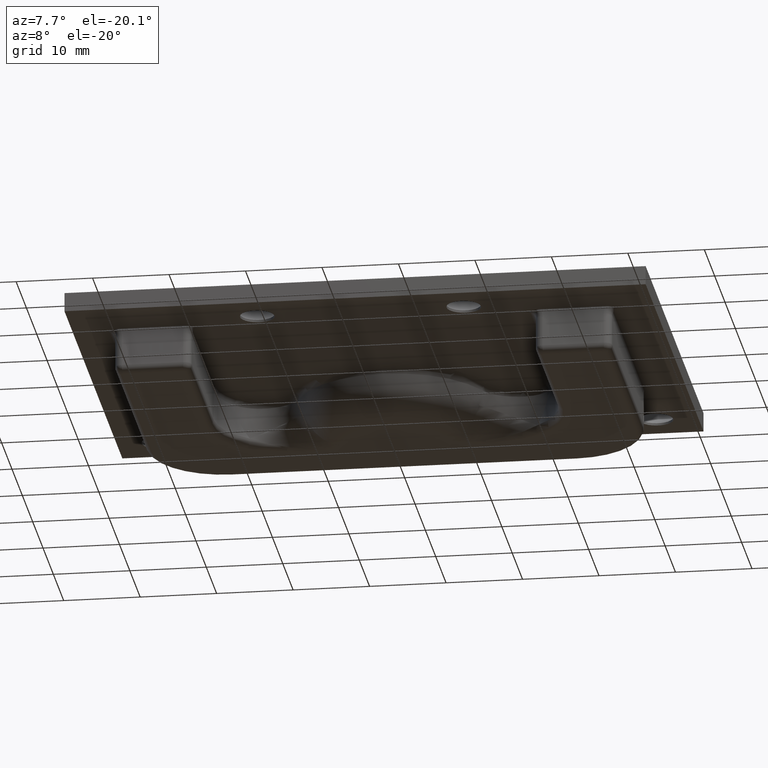
[diagram: clean part render]
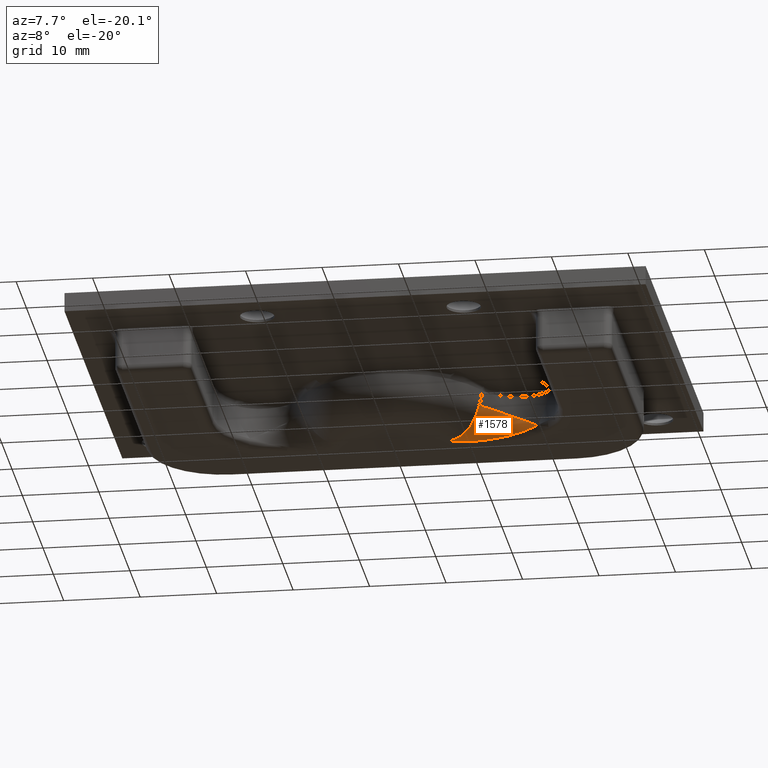
[diagram: same view with one face highlighted and labeled with its STEP entity id]
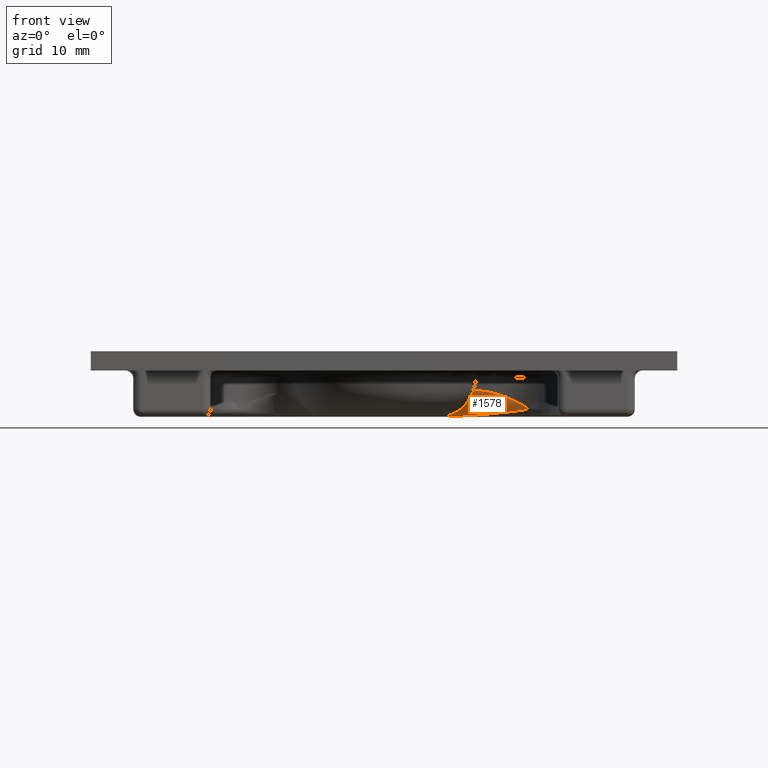
[diagram: same view with one face highlighted and labeled with its STEP entity id]
A machine part, auxiliary view. The second image highlights one B-rep face of the part: STEP entity #1578.
A second angle (front view) of the same face is appended — the face is thin or edge-on in the first view.
In plain terms, the highlighted face is a freeform B-spline surface patch.
Its self-contained STEP definition (entity closure, byte-faithful):
#316=B_SPLINE_CURVE_WITH_KNOTS('',3,(#2622,#2623,#2624,#2625,#2626,#2627,
#2628,#2629,#2630,#2631,#2632,#2633),.UNSPECIFIED.,.F.,.F.,(4,1,1,1,1,1,
1,2,4),(0.,0.251169020170854,0.376753530256281,0.502338040341707,0.627922550427134,
0.753507060512561,1.00467608068341,1.25584510085427,1.25755163621248),
 .UNSPECIFIED.);
#320=B_SPLINE_CURVE_WITH_KNOTS('',3,(#2769,#2770,#2771,#2772,#2773,#2774,
#2775,#2776,#2777,#2778,#2779,#2780),.UNSPECIFIED.,.F.,.F.,(4,2,1,1,1,1,
1,1,4),(-1.25755163621248,-1.25584510085427,-1.00467608068341,-0.753507060512561,
-0.627922550427134,-0.502338040341707,-0.376753530256281,-0.251169020170854,
0.),.UNSPECIFIED.);
#330=B_SPLINE_SURFACE_WITH_KNOTS('',3,3,((#2696,#2697,#2698,#2699,#2700,
#2701,#2702,#2703,#2704,#2705,#2706,#2707),(#2708,#2709,#2710,#2711,#2712,
#2713,#2714,#2715,#2716,#2717,#2718,#2719),(#2720,#2721,#2722,#2723,#2724,
#2725,#2726,#2727,#2728,#2729,#2730,#2731),(#2732,#2733,#2734,#2735,#2736,
#2737,#2738,#2739,#2740,#2741,#2742,#2743),(#2744,#2745,#2746,#2747,#2748,
#2749,#2750,#2751,#2752,#2753,#2754,#2755),(#2756,#2757,#2758,#2759,#2760,
#2761,#2762,#2763,#2764,#2765,#2766,#2767)),.UNSPECIFIED.,.F.,.F.,.F.,(4,
1,1,4),(4,1,1,1,1,1,1,2,4),(0.,0.285714285714286,0.571428571428571,1.),
(0.,0.251169020170854,0.376753530256281,0.502338040341707,0.627922550427134,
0.753507060512561,1.00467608068341,1.25584510085427,1.25755163621248),
 .UNSPECIFIED.);
#400=FACE_OUTER_BOUND('',#512,.T.);
#512=EDGE_LOOP('',(#1136,#1137,#1138));
#636=CIRCLE('',#1706,5.);
#732=VERTEX_POINT('',#2619);
#733=VERTEX_POINT('',#2621);
#738=VERTEX_POINT('',#2768);
#884=EDGE_CURVE('',#733,#732,#316,.T.);
#892=EDGE_CURVE('',#732,#738,#320,.T.);
#893=EDGE_CURVE('',#738,#733,#636,.T.);
#1136=ORIENTED_EDGE('',*,*,#884,.T.);
#1137=ORIENTED_EDGE('',*,*,#892,.T.);
#1138=ORIENTED_EDGE('',*,*,#893,.T.);
#1578=ADVANCED_FACE('',(#400),#330,.T.);
#1706=AXIS2_PLACEMENT_3D('',#2781,#1942,#1943);
#1942=DIRECTION('center_axis',(0.366929144654861,-0.297023210503434,0.88155556559135));
#1943=DIRECTION('ref_axis',(0.629179457559862,0.777260065991221,-2.95319324550292E-14));
#2619=CARTESIAN_POINT('',(6.98328978842822,11.0166122355353,-6.));
#2621=CARTESIAN_POINT('',(11.4977239630233,7.00721637078581,-2.72727272727264));
#2622=CARTESIAN_POINT('Ctrl Pts',(11.4977239630233,7.00721637078581,-2.72727272727264));
#2623=CARTESIAN_POINT('Ctrl Pts',(11.3384179139999,7.16399641722447,-3.12985354115579));
#2624=CARTESIAN_POINT('Ctrl Pts',(11.0844118238203,7.53828450565104,-3.68735695889978));
#2625=CARTESIAN_POINT('Ctrl Pts',(10.6543981870732,8.11284087741195,-4.32209043936628));
#2626=CARTESIAN_POINT('Ctrl Pts',(10.2766563198052,8.56993571602306,-4.7505059204097));
#2627=CARTESIAN_POINT('Ctrl Pts',(9.84406299400316,9.02906404177418,-5.12171864078254));
#2628=CARTESIAN_POINT('Ctrl Pts',(9.20061402947328,9.62661185026056,-5.53542506265548));
#2629=CARTESIAN_POINT('Ctrl Pts',(8.27088820045195,10.3293765006812,-5.89737085164065));
#2630=CARTESIAN_POINT('Ctrl Pts',(7.42533970057211,10.8051184787589,-5.99927736195281));
#2631=CARTESIAN_POINT('Ctrl Pts',(6.98917473840528,11.013802213345,-5.99999788271879));
#2632=CARTESIAN_POINT('Ctrl Pts',(6.98623301014591,11.0152075858917,-6.));
#2633=CARTESIAN_POINT('Ctrl Pts',(6.98328978842821,11.0166122355353,-6.));
#2696=CARTESIAN_POINT('Ctrl Pts',(18.7917945755986,9.27260065991222,-4.99999999999997));
#2697=CARTESIAN_POINT('Ctrl Pts',(18.177386350698,9.76995418491324,-5.12301080424205));
#2698=CARTESIAN_POINT('Ctrl Pts',(16.9243466508803,10.6068073882782,-5.29335907077494));
#2699=CARTESIAN_POINT('Ctrl Pts',(15.0679478068575,11.3258517595754,-5.48730541202859));
#2700=CARTESIAN_POINT('Ctrl Pts',(13.6536659793175,11.6766243647718,-5.61821014234742));
#2701=CARTESIAN_POINT('Ctrl Pts',(12.2968638828709,11.837722583925,-5.73163625135022));
#2702=CARTESIAN_POINT('Ctrl Pts',(10.614797976888,11.8538835017192,-5.85804654692253));
#2703=CARTESIAN_POINT('Ctrl Pts',(8.76583494743297,11.5921773979339,-5.96864109355685));
#2704=CARTESIAN_POINT('Ctrl Pts',(7.54738094644113,11.2239398727163,-5.9997791939301));
#2705=CARTESIAN_POINT('Ctrl Pts',(6.99078719211681,11.0193742811766,-5.99999935305296));
#2706=CARTESIAN_POINT('Ctrl Pts',(6.98703820379755,11.0179939757946,-6.));
#2707=CARTESIAN_POINT('Ctrl Pts',(6.98328978842821,11.0166122355353,-6.));
#2708=CARTESIAN_POINT('Ctrl Pts',(18.1900588563915,9.7596959964291,-4.58542262371709));
#2709=CARTESIAN_POINT('Ctrl Pts',(17.5798282021667,10.1088525910385,-4.66193082094218));
#2710=CARTESIAN_POINT('Ctrl Pts',(16.3564898161478,10.715742872353,-4.87074059810116));
#2711=CARTESIAN_POINT('Ctrl Pts',(14.6120762118099,11.2495814696535,-5.16088271751777));
#2712=CARTESIAN_POINT('Ctrl Pts',(13.295292011467,11.5143106284183,-5.37141433194665));
#2713=CARTESIAN_POINT('Ctrl Pts',(12.0358243173872,11.6405617170697,-5.55870523914056));
#2714=CARTESIAN_POINT('Ctrl Pts',(10.4675423611684,11.6610680519839,-5.76918250555324));
#2715=CARTESIAN_POINT('Ctrl Pts',(8.71863736005709,11.4714129353507,-5.95101984880379));
#2716=CARTESIAN_POINT('Ctrl Pts',(7.53574184270982,11.1840425025552,-5.99965514496532));
#2717=CARTESIAN_POINT('Ctrl Pts',(6.99063370051593,11.018843653398,-5.99999899515324));
#2718=CARTESIAN_POINT('Ctrl Pts',(6.98696151868787,11.0177286053276,-6.));
#2719=CARTESIAN_POINT('Ctrl Pts',(6.98328978842821,11.0166122355353,-6.));
#2720=CARTESIAN_POINT('Ctrl Pts',(16.6931910397295,10.3615889268716,-3.75958631047213));
#2721=CARTESIAN_POINT('Ctrl Pts',(16.1636080325988,10.4467505679413,-3.80148735494918));
#2722=CARTESIAN_POINT('Ctrl Pts',(15.1105259168821,10.6734765116975,-4.12431533781065));
#2723=CARTESIAN_POINT('Ctrl Pts',(13.6630332379183,10.93707832717,-4.60407491526296));
#2724=CARTESIAN_POINT('Ctrl Pts',(12.5706976960201,11.0918519612837,-4.95851118626685));
#2725=CARTESIAN_POINT('Ctrl Pts',(11.5165765963289,11.1930613404439,-5.27273357613447));
#2726=CARTESIAN_POINT('Ctrl Pts',(10.1779820858262,11.2600466480586,-5.62382169209026));
#2727=CARTESIAN_POINT('Ctrl Pts',(8.62445798760035,11.2303653226667,-5.92202109888167));
#2728=CARTESIAN_POINT('Ctrl Pts',(7.51249134860025,11.1042581758291,-5.99945372577203));
#2729=CARTESIAN_POINT('Ctrl Pts',(6.99032658804547,11.0177823494789,-5.99999838918884));
#2730=CARTESIAN_POINT('Ctrl Pts',(6.98680814846851,11.0171978643937,-6.));
#2731=CARTESIAN_POINT('Ctrl Pts',(6.98328978842821,11.0166122355353,-6.));
#2732=CARTESIAN_POINT('Ctrl Pts',(13.7286385041025,9.8529207158461,-2.69703903878219));
#2733=CARTESIAN_POINT('Ctrl Pts',(13.4588435223756,9.74598066021009,-2.84385722213729));
#2734=CARTESIAN_POINT('Ctrl Pts',(12.8923362493659,9.7277172395672,-3.36487090462802));
#2735=CARTESIAN_POINT('Ctrl Pts',(12.043908617586,9.89590663983912,-4.06485898563467));
#2736=CARTESIAN_POINT('Ctrl Pts',(11.3619498611969,10.0671017160181,-4.56620522231445));
#2737=CARTESIAN_POINT('Ctrl Pts',(10.655834470643,10.2602827042882,-5.00256855199161));
#2738=CARTESIAN_POINT('Ctrl Pts',(9.69462925562809,10.5174344028846,-5.48549189306368));
#2739=CARTESIAN_POINT('Ctrl Pts',(8.45943912211177,10.8095911359926,-5.89274962531557));
#2740=CARTESIAN_POINT('Ctrl Pts',(7.47179372867955,10.9646649555949,-5.99922702050728));
#2741=CARTESIAN_POINT('Ctrl Pts',(6.98978918219923,11.015924929755,-5.99999788837388));
#2742=CARTESIAN_POINT('Ctrl Pts',(6.98653975058463,11.0162690677595,-6.));
#2743=CARTESIAN_POINT('Ctrl Pts',(6.98328978842822,11.0166122355353,-6.));
#2744=CARTESIAN_POINT('Ctrl Pts',(12.052033908581,8.19034594774068,-2.55935991840478));
#2745=CARTESIAN_POINT('Ctrl Pts',(11.906007616937,8.22101465504737,-2.8667937067762));
#2746=CARTESIAN_POINT('Ctrl Pts',(11.6089158596563,8.41391348751108,-3.43220450384852));
#2747=CARTESIAN_POINT('Ctrl Pts',(11.089017216229,8.80819557469347,-4.12818658272472));
#2748=CARTESIAN_POINT('Ctrl Pts',(10.6330107663919,9.14499135991275,-4.61039231179606));
#2749=CARTESIAN_POINT('Ctrl Pts',(10.1215408919903,9.49679875586683,-5.02910263766523));
#2750=CARTESIAN_POINT('Ctrl Pts',(9.37819247602224,9.9615523787902,-5.49344331967121));
#2751=CARTESIAN_POINT('Ctrl Pts',(8.34199081599905,10.5091292054187,-5.89160905917973));
#2752=CARTESIAN_POINT('Ctrl Pts',(7.44280406920618,10.864911708912,-5.99926721394893));
#2753=CARTESIAN_POINT('Ctrl Pts',(6.98940495018772,11.0145984020954,-5.99999761496369));
#2754=CARTESIAN_POINT('Ctrl Pts',(6.98634803781043,11.0156056415921,-6.));
#2755=CARTESIAN_POINT('Ctrl Pts',(6.98328978842821,11.0166122355353,-6.));
#2756=CARTESIAN_POINT('Ctrl Pts',(11.4977239630233,7.00721637078581,-2.72727272727264));
#2757=CARTESIAN_POINT('Ctrl Pts',(11.3384179139999,7.16399641722447,-3.12985354115579));
#2758=CARTESIAN_POINT('Ctrl Pts',(11.0844118238203,7.53828450565104,-3.68735695889978));
#2759=CARTESIAN_POINT('Ctrl Pts',(10.6543981870732,8.11284087741195,-4.32209043936628));
#2760=CARTESIAN_POINT('Ctrl Pts',(10.2766563198052,8.56993571602306,-4.7505059204097));
#2761=CARTESIAN_POINT('Ctrl Pts',(9.84406299400316,9.02906404177418,-5.12171864078254));
#2762=CARTESIAN_POINT('Ctrl Pts',(9.20061402947328,9.62661185026056,-5.53542506265548));
#2763=CARTESIAN_POINT('Ctrl Pts',(8.27088820045195,10.3293765006812,-5.89737085164065));
#2764=CARTESIAN_POINT('Ctrl Pts',(7.42533970057211,10.8051184787589,-5.99927736195281));
#2765=CARTESIAN_POINT('Ctrl Pts',(6.98917473840528,11.013802213345,-5.99999788271879));
#2766=CARTESIAN_POINT('Ctrl Pts',(6.98623301014591,11.0152075858917,-6.));
#2767=CARTESIAN_POINT('Ctrl Pts',(6.98328978842821,11.0166122355353,-6.));
#2768=CARTESIAN_POINT('',(18.7917945755986,9.27260065991222,-4.99999999999999));
#2769=CARTESIAN_POINT('Ctrl Pts',(6.98328978842821,11.0166122355353,-6.));
#2770=CARTESIAN_POINT('Ctrl Pts',(6.98703820379755,11.0179939757946,-6.));
#2771=CARTESIAN_POINT('Ctrl Pts',(6.99078719211681,11.0193742811766,-5.99999935305296));
#2772=CARTESIAN_POINT('Ctrl Pts',(7.54738094644113,11.2239398727163,-5.9997791939301));
#2773=CARTESIAN_POINT('Ctrl Pts',(8.76583494743297,11.5921773979339,-5.96864109355685));
#2774=CARTESIAN_POINT('Ctrl Pts',(10.614797976888,11.8538835017192,-5.85804654692253));
#2775=CARTESIAN_POINT('Ctrl Pts',(12.2968638828709,11.837722583925,-5.73163625135022));
#2776=CARTESIAN_POINT('Ctrl Pts',(13.6536659793175,11.6766243647718,-5.61821014234742));
#2777=CARTESIAN_POINT('Ctrl Pts',(15.0679478068575,11.3258517595754,-5.48730541202859));
#2778=CARTESIAN_POINT('Ctrl Pts',(16.9243466508803,10.6068073882782,-5.29335907077494));
#2779=CARTESIAN_POINT('Ctrl Pts',(18.177386350698,9.76995418491324,-5.12301080424205));
#2780=CARTESIAN_POINT('Ctrl Pts',(18.7917945755986,9.27260065991222,-4.99999999999997));
#2781=CARTESIAN_POINT('Origin',(15.6458972877993,5.38630032995611,-4.99999999999984));